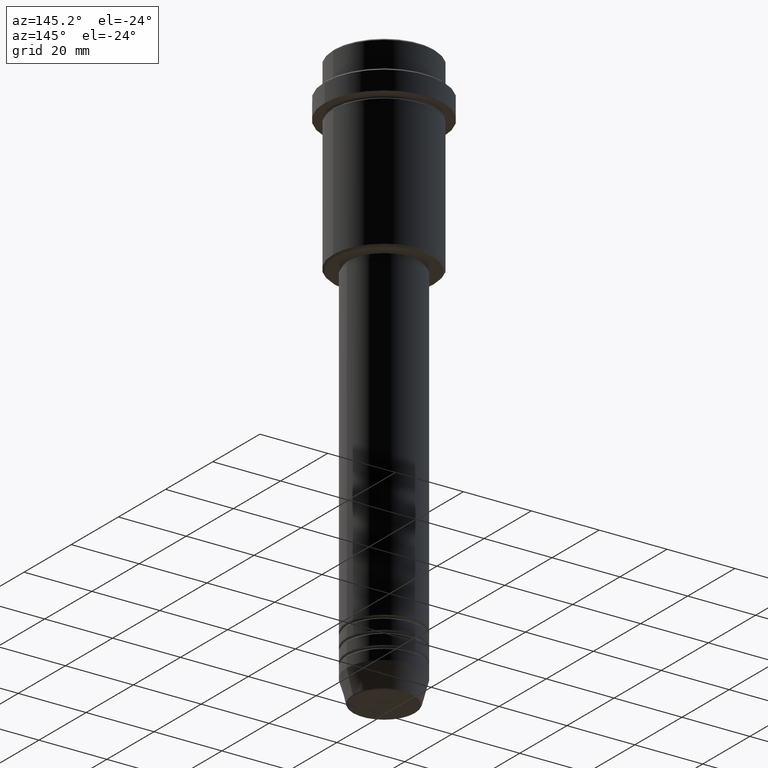
[diagram: clean part render]
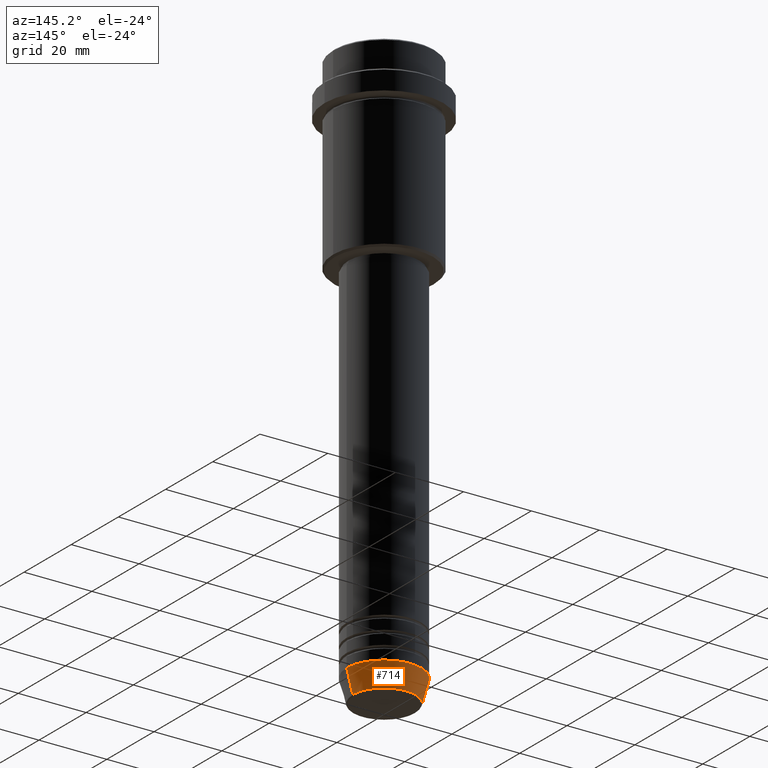
[diagram: same view with one face highlighted and labeled with its STEP entity id]
A machine part, auxiliary view. The second image highlights one B-rep face of the part: STEP entity #714.
In plain terms, the highlighted conical surface has half-angle 15 deg.
Its self-contained STEP definition (entity closure, byte-faithful):
#42 = CARTESIAN_POINT ( 'NONE',  ( 0.000000000000000000, 0.000000000000000000, -169.6294095225512422 ) ) ;
#98 = CARTESIAN_POINT ( 'NONE',  ( 0.000000000000000000, 0.000000000000000000, -162.9999999999999716 ) ) ;
#105 = CONICAL_SURFACE ( 'NONE', #1277, 11.00000000000000000, 0.2617993877991500740 ) ;
#126 = VECTOR ( 'NONE', #800, 1000.000000000000000 ) ;
#145 = EDGE_CURVE ( 'NONE', #1265, #815, #612, .T. ) ;
#170 = CARTESIAN_POINT ( 'NONE',  ( -9.223655072137189492, 1.238341722557647202E-15, -169.6294095225512422 ) ) ;
#181 = CARTESIAN_POINT ( 'NONE',  ( -11.00000000000000000, 1.347111479062088405E-15, -162.9999999999999716 ) ) ;
#224 = CARTESIAN_POINT ( 'NONE',  ( 9.223655072137189492, 0.000000000000000000, -169.6294095225512422 ) ) ;
#269 = FACE_OUTER_BOUND ( 'NONE', #964, .T. ) ;
#297 = CARTESIAN_POINT ( 'NONE',  ( 11.00000000000000000, 0.000000000000000000, -162.9999999999999716 ) ) ;
#372 = VERTEX_POINT ( 'NONE', #170 ) ;
#374 = ORIENTED_EDGE ( 'NONE', *, *, #1187, .T. ) ;
#384 = EDGE_CURVE ( 'NONE', #634, #1265, #613, .T. ) ;
#494 = DIRECTION ( 'NONE',  ( 1.000000000000000000, 0.000000000000000000, 0.000000000000000000 ) ) ;
#534 = EDGE_CURVE ( 'NONE', #372, #815, #1286, .T. ) ;
#541 = DIRECTION ( 'NONE',  ( -0.000000000000000000, -0.000000000000000000, 1.000000000000000000 ) ) ;
#590 = AXIS2_PLACEMENT_3D ( 'NONE', #42, #1148, #494 ) ;
#594 = ORIENTED_EDGE ( 'NONE', *, *, #145, .F. ) ;
#612 = CIRCLE ( 'NONE', #953, 11.00000000000000000 ) ;
#613 = LINE ( 'NONE', #1045, #126 ) ;
#632 = CARTESIAN_POINT ( 'NONE',  ( 0.000000000000000000, 0.000000000000000000, -162.9999999999999716 ) ) ;
#634 = VERTEX_POINT ( 'NONE', #224 ) ;
#676 = DIRECTION ( 'NONE',  ( 1.000000000000000000, 0.000000000000000000, 0.000000000000000000 ) ) ;
#714 = ADVANCED_FACE ( 'NONE', ( #269 ), #105, .T. ) ;
#800 = DIRECTION ( 'NONE',  ( 0.2588190451025213501, 0.000000000000000000, 0.9659258262890680902 ) ) ;
#815 = VERTEX_POINT ( 'NONE', #921 ) ;
#823 = CIRCLE ( 'NONE', #590, 9.223655072137189492 ) ;
#921 = CARTESIAN_POINT ( 'NONE',  ( -11.00000000000000000, 1.347111479062088405E-15, -162.9999999999999716 ) ) ;
#953 = AXIS2_PLACEMENT_3D ( 'NONE', #632, #1062, #676 ) ;
#964 = EDGE_LOOP ( 'NONE', ( #374, #1238, #594, #1354 ) ) ;
#974 = DIRECTION ( 'NONE',  ( 1.000000000000000000, 0.000000000000000000, 0.000000000000000000 ) ) ;
#1045 = CARTESIAN_POINT ( 'NONE',  ( 11.00000000000000000, 0.000000000000000000, -162.9999999999999716 ) ) ;
#1062 = DIRECTION ( 'NONE',  ( -0.000000000000000000, -0.000000000000000000, 1.000000000000000000 ) ) ;
#1148 = DIRECTION ( 'NONE',  ( -0.000000000000000000, -0.000000000000000000, 1.000000000000000000 ) ) ;
#1187 = EDGE_CURVE ( 'NONE', #634, #372, #823, .T. ) ;
#1238 = ORIENTED_EDGE ( 'NONE', *, *, #534, .T. ) ;
#1265 = VERTEX_POINT ( 'NONE', #297 ) ;
#1277 = AXIS2_PLACEMENT_3D ( 'NONE', #98, #541, #974 ) ;
#1286 = LINE ( 'NONE', #181, #1389 ) ;
#1354 = ORIENTED_EDGE ( 'NONE', *, *, #384, .F. ) ;
#1389 = VECTOR ( 'NONE', #1391, 1000.000000000000000 ) ;
#1391 = DIRECTION ( 'NONE',  ( -0.2588190451025213501, 3.169619151431772337E-17, 0.9659258262890680902 ) ) ;